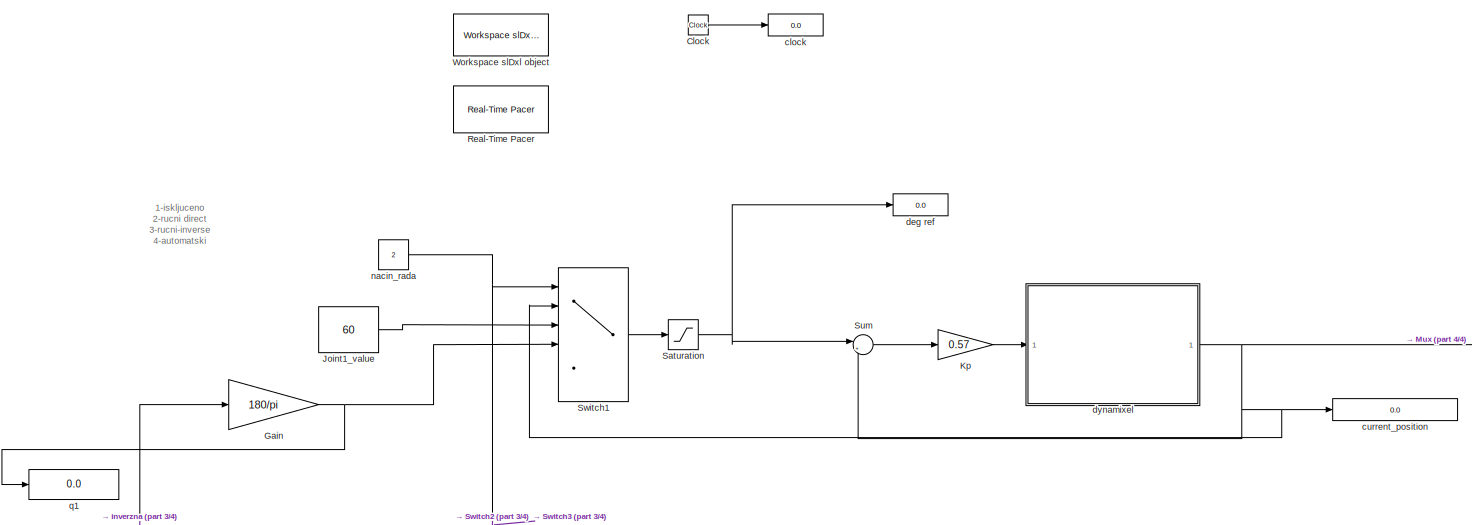
[diagram: root canvas - part 1/4, top center region]
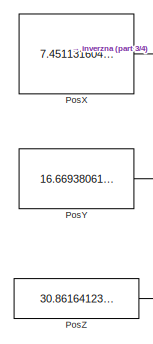
[diagram: root canvas - part 2/4, middle left region]
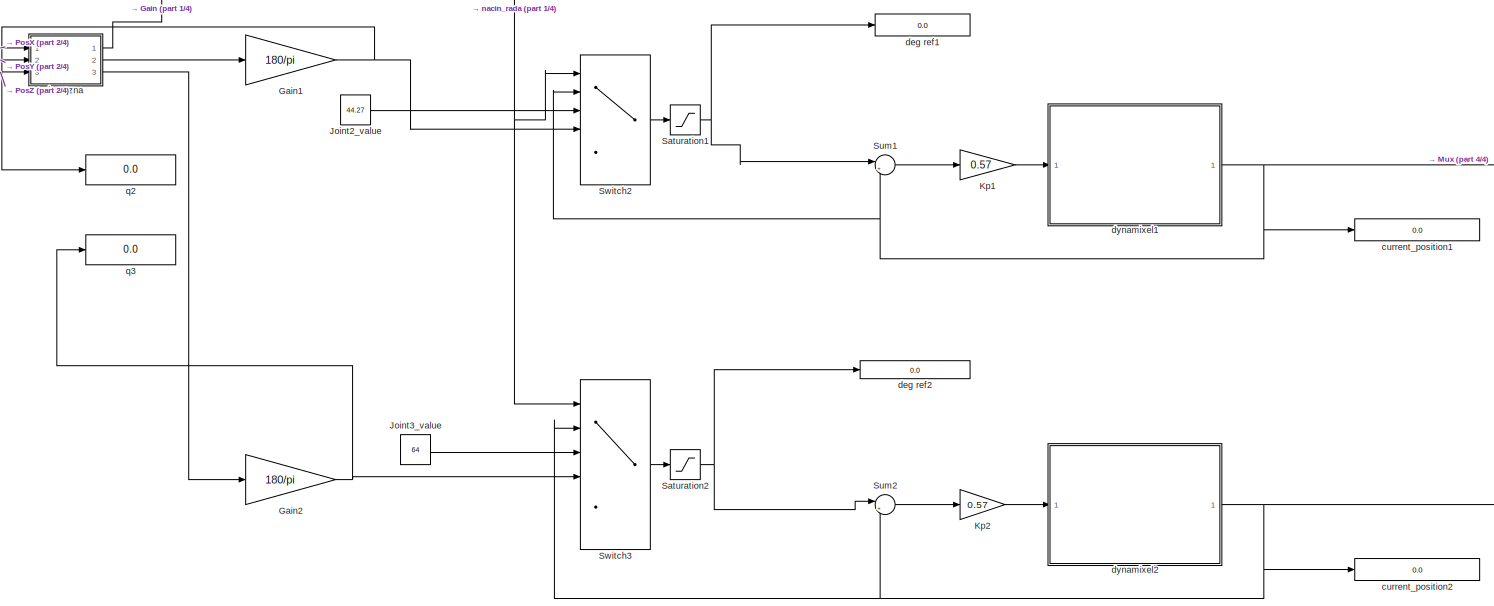
[diagram: root canvas - part 3/4, bottom center region]
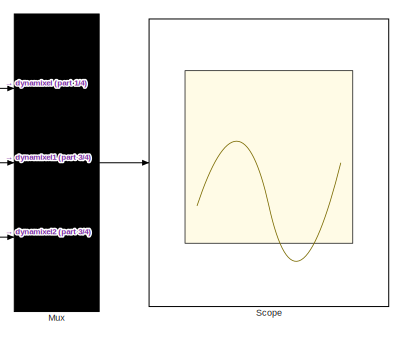
[diagram: root canvas - part 4/4, middle right region]
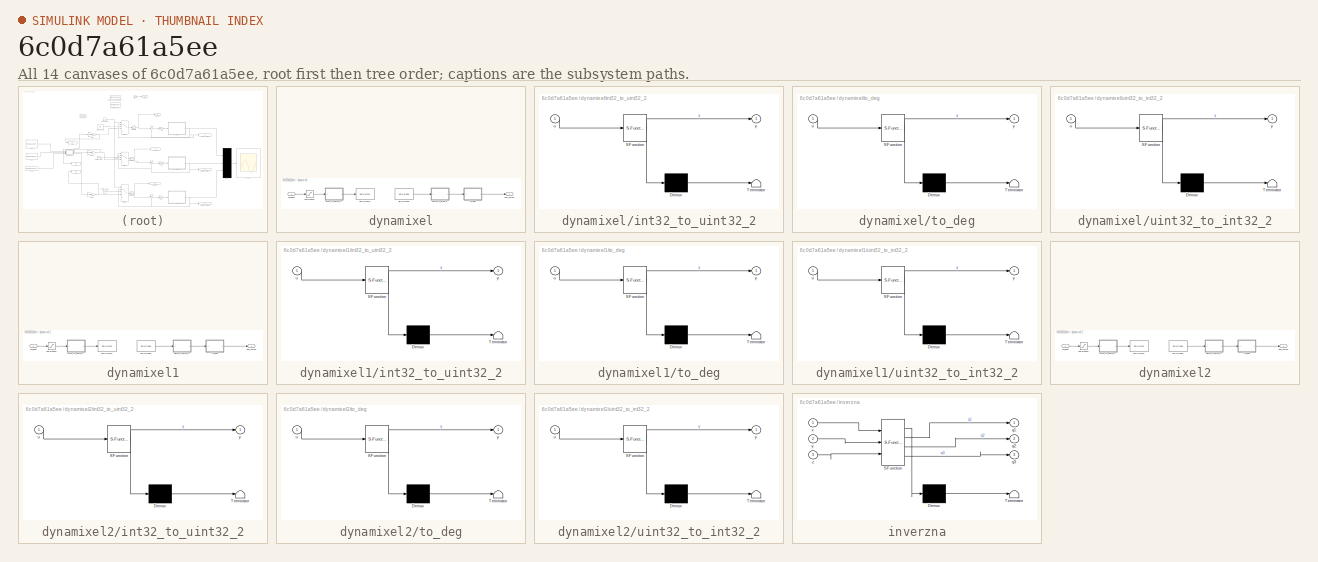
[diagram: thumbnail index - all 14 canvases of the model, root first then tree order]
MODEL slx_6c0d7a61a5ee
KIND model
CONFIG AbsTol = auto
CONFIG EnableMultiTasking = off
CONFIG FixedStep = Ts
CONFIG MaxStep = auto
CONFIG MinStep = auto
CONFIG RelTol = 1e-3
CONFIG SampleTimeConstraint = Unconstrained
CONFIG SolverName = FixedStepAuto
CONFIG StartTime = 0.0
CONFIG StopTime = inf
BLOCK [Clock] Clock
BLOCK [Gain] Gain
  Gain = 180/pi
BLOCK [Gain] Gain1
  Gain = 180/pi
BLOCK [Gain] Gain2
  Gain = 180/pi
BLOCK [Constant] Joint1_value
  Value = 60
BLOCK [Constant] Joint2_value
  Value = 44.27
BLOCK [Constant] Joint3_value
  Value = 64
BLOCK [Gain] Kp
  Gain = 0.57
BLOCK [Gain] Kp1
  Gain = 0.57
BLOCK [Gain] Kp2
  Gain = 0.57
BLOCK [Mux] Mux
  DisplayOption = bar
  Inputs = 3
  Ports = [3, 1]
BLOCK [Constant] PosX
  SampleTime = -1
  Value = 7.45113160479349
  VectorParams1D = off
BLOCK [Constant] PosY
  SampleTime = -1
  Value = 16.6693806165226
  VectorParams1D = off
BLOCK [Constant] PosZ
  SampleTime = -1
  Value = 30.8616412362678
  VectorParams1D = off
BLOCK [Reference] Real-Time Pacer  REF=slDxl_lib_old/Real-Time Pacer
  Commented = on
  Ports = []
  SourceBlock = slDxl_lib_old/Real-Time Pacer
  SourceType = RealTime_Pacer
BLOCK [Saturate] Saturation
  LowerLimit = -180
  UpperLimit = 180
BLOCK [Saturate] Saturation1
  LowerLimit = 0
  UpperLimit = 100
BLOCK [Saturate] Saturation2
  LowerLimit = 0
  UpperLimit = 60
BLOCK [Scope] Scope
  Floating = off
  NumInputPorts = 1
  Ports = [1]
  ScopeSpecificationString = Simulink.scopes.TimeScopeBlockCfg('CurrentConfiguration', extmgr.ConfigurationSet(extmgr.Configuration('Core','General UI',true,'FigureColor',[0.156862745098039 0.156862745098039 0.156862745098039]),extmgr.Configuration('Core','Source UI',true),extmgr.Configuration('Sources','WiredSimulink',true,'DataLoggingSaveFormat','StructureWithTime','DataLoggingDecimation','1','DataLoggingDecimateData',true)...<+2763ch>
BLOCK [Sum] Sum
  Inputs = |+-
  Ports = [2, 1]
BLOCK [Sum] Sum1
  Inputs = |+-
  Ports = [2, 1]
BLOCK [Sum] Sum2
  Inputs = |+-
  Ports = [2, 1]
BLOCK [MultiPortSwitch] Switch1 
  DataPortForDefault = Additional data port
  InputSameDT = off
  Inputs = 4
  Ports = [6, 1]
  SaturateOnIntegerOverflow = off
BLOCK [MultiPortSwitch] Switch2
  DataPortForDefault = Additional data port
  InputSameDT = off
  Inputs = 4
  Ports = [6, 1]
  SaturateOnIntegerOverflow = off
BLOCK [MultiPortSwitch] Switch3
  DataPortForDefault = Additional data port
  InputSameDT = off
  Inputs = 4
  Ports = [6, 1]
  SaturateOnIntegerOverflow = off
BLOCK [Reference] Workspace slDxl object  REF=slDxl_lib_old/Workspace slDxl object
  Ports = []
  SourceBlock = slDxl_lib_old/Workspace slDxl object
  SourceType = slDxl Setup
BLOCK [Display] clock
  Decimation = 1
  Format = long
  Ports = [1]
BLOCK [Display] current_position
  Decimation = 5
  Format = long
  Ports = [1]
BLOCK [Display] current_position1
  Decimation = 5
  Format = long
  Ports = [1]
BLOCK [Display] current_position2
  Decimation = 5
  Format = long
  Ports = [1]
BLOCK [Display] deg ref
  Decimation = 1
  Format = long
  Ports = [1]
BLOCK [Display] deg ref1
  Decimation = 1
  Format = long
  Ports = [1]
BLOCK [Display] deg ref2
  Decimation = 1
  Format = long
  Ports = [1]
BLOCK [SubSystem] dynamixel
  Ports = [1, 1]
  RequestExecContextInheritance = off
BLOCK [Saturate] dynamixel/Saturation2
  LowerLimit = -256
  NameLocation = top
  UpperLimit = 256
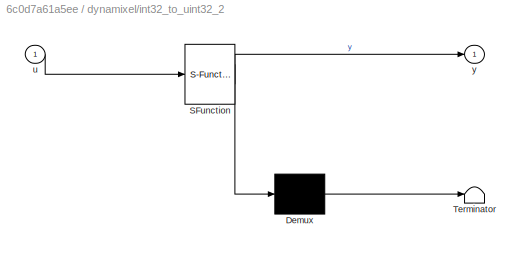
BLOCK [SubSystem] dynamixel/int32_to_uint32_2
  ErrorFcn = Stateflow.Translate.translate
  PermitHierarchicalResolution = ExplicitOnly
  Ports = [1, 1]
  RequestExecContextInheritance = off
  SFBlockType = MATLAB Function
  TreatAsAtomicUnit = on
BLOCK [Demux] dynamixel/int32_to_uint32_2/ Demux 
  Outputs = 1
  Ports = [1, 1]
BLOCK [S-Function] dynamixel/int32_to_uint32_2/ SFunction 
  EnableBusSupport = on
  FunctionName = sf_sfun
  PortCounts = [1 2]
  Ports = [1, 2]
  SFcnIsStateOwnerBlock = off
  SFunctionDeploymentMode = off
  Tag = Stateflow S-Function 4
BLOCK [Terminator] dynamixel/int32_to_uint32_2/ Terminator 
BLOCK [Inport] dynamixel/int32_to_uint32_2/u
BLOCK [Outport] dynamixel/int32_to_uint32_2/y
  VectorParamsAs1DForOutWhenUnconnected = off
BLOCK [Outport] dynamixel/pos_output
  VectorParamsAs1DForOutWhenUnconnected = off
BLOCK [Reference] dynamixel/slDxl Read1  REF=slDxl_lib_old/slDxl Read
  Ports = [0, 1]
  SourceBlock = slDxl_lib_old/slDxl Read
BLOCK [Reference] dynamixel/slDxl Write1  REF=slDxl_lib_old/slDxl Write
  Ports = [1]
  SourceBlock = slDxl_lib_old/slDxl Write
BLOCK [SubSystem] dynamixel/to_deg
  ErrorFcn = Stateflow.Translate.translate
  PermitHierarchicalResolution = ExplicitOnly
  Ports = [1, 1]
  RequestExecContextInheritance = off
  SFBlockType = MATLAB Function
  TreatAsAtomicUnit = on
BLOCK [Demux] dynamixel/to_deg/ Demux 
  Outputs = 1
  Ports = [1, 1]
BLOCK [S-Function] dynamixel/to_deg/ SFunction 
  EnableBusSupport = on
  FunctionName = sf_sfun
  PortCounts = [1 2]
  Ports = [1, 2]
  SFcnIsStateOwnerBlock = off
  SFunctionDeploymentMode = off
  Tag = Stateflow S-Function 3
BLOCK [Terminator] dynamixel/to_deg/ Terminator 
BLOCK [Inport] dynamixel/to_deg/u
BLOCK [Outport] dynamixel/to_deg/y
  VectorParamsAs1DForOutWhenUnconnected = off
BLOCK [SubSystem] dynamixel/uint32_to_int32_2
  ErrorFcn = Stateflow.Translate.translate
  PermitHierarchicalResolution = ExplicitOnly
  Ports = [1, 1]
  RequestExecContextInheritance = off
  SFBlockType = MATLAB Function
  TreatAsAtomicUnit = on
BLOCK [Demux] dynamixel/uint32_to_int32_2/ Demux 
  Outputs = 1
  Ports = [1, 1]
BLOCK [S-Function] dynamixel/uint32_to_int32_2/ SFunction 
  EnableBusSupport = on
  FunctionName = sf_sfun
  PortCounts = [1 2]
  Ports = [1, 2]
  SFcnIsStateOwnerBlock = off
  SFunctionDeploymentMode = off
  Tag = Stateflow S-Function 1
BLOCK [Terminator] dynamixel/uint32_to_int32_2/ Terminator 
BLOCK [Inport] dynamixel/uint32_to_int32_2/u
BLOCK [Outport] dynamixel/uint32_to_int32_2/y
  VectorParamsAs1DForOutWhenUnconnected = off
BLOCK [Inport] dynamixel/vel_input
BLOCK [SubSystem] dynamixel1
  Ports = [1, 1]
  RequestExecContextInheritance = off
BLOCK [Saturate] dynamixel1/Saturation2
  LowerLimit = -256
  NameLocation = top
  UpperLimit = 256
BLOCK [SubSystem] dynamixel1/int32_to_uint32_2
  ErrorFcn = Stateflow.Translate.translate
  PermitHierarchicalResolution = ExplicitOnly
  Ports = [1, 1]
  RequestExecContextInheritance = off
  SFBlockType = MATLAB Function
  TreatAsAtomicUnit = on
BLOCK [Demux] dynamixel1/int32_to_uint32_2/ Demux 
  Outputs = 1
  Ports = [1, 1]
BLOCK [S-Function] dynamixel1/int32_to_uint32_2/ SFunction 
  EnableBusSupport = on
  FunctionName = sf_sfun
  PortCounts = [1 2]
  Ports = [1, 2]
  SFcnIsStateOwnerBlock = off
  SFunctionDeploymentMode = off
  Tag = Stateflow S-Function 2
BLOCK [Terminator] dynamixel1/int32_to_uint32_2/ Terminator 
BLOCK [Inport] dynamixel1/int32_to_uint32_2/u
BLOCK [Outport] dynamixel1/int32_to_uint32_2/y
  VectorParamsAs1DForOutWhenUnconnected = off
BLOCK [Outport] dynamixel1/pos_output
  VectorParamsAs1DForOutWhenUnconnected = off
BLOCK [Reference] dynamixel1/slDxl Read1  REF=slDxl_lib_old/slDxl Read
  Ports = [0, 1]
  SourceBlock = slDxl_lib_old/slDxl Read
BLOCK [Reference] dynamixel1/slDxl Write1  REF=slDxl_lib_old/slDxl Write
  Ports = [1]
  SourceBlock = slDxl_lib_old/slDxl Write
BLOCK [SubSystem] dynamixel1/to_deg
  ErrorFcn = Stateflow.Translate.translate
  PermitHierarchicalResolution = ExplicitOnly
  Ports = [1, 1]
  RequestExecContextInheritance = off
  SFBlockType = MATLAB Function
  TreatAsAtomicUnit = on
BLOCK [Demux] dynamixel1/to_deg/ Demux 
  Outputs = 1
  Ports = [1, 1]
BLOCK [S-Function] dynamixel1/to_deg/ SFunction 
  EnableBusSupport = on
  FunctionName = sf_sfun
  PortCounts = [1 2]
  Ports = [1, 2]
  SFcnIsStateOwnerBlock = off
  SFunctionDeploymentMode = off
  Tag = Stateflow S-Function 5
BLOCK [Terminator] dynamixel1/to_deg/ Terminator 
BLOCK [Inport] dynamixel1/to_deg/u
BLOCK [Outport] dynamixel1/to_deg/y
  VectorParamsAs1DForOutWhenUnconnected = off
BLOCK [SubSystem] dynamixel1/uint32_to_int32_2
  ErrorFcn = Stateflow.Translate.translate
  PermitHierarchicalResolution = ExplicitOnly
  Ports = [1, 1]
  RequestExecContextInheritance = off
  SFBlockType = MATLAB Function
  TreatAsAtomicUnit = on
BLOCK [Demux] dynamixel1/uint32_to_int32_2/ Demux 
  Outputs = 1
  Ports = [1, 1]
BLOCK [S-Function] dynamixel1/uint32_to_int32_2/ SFunction 
  EnableBusSupport = on
  FunctionName = sf_sfun
  PortCounts = [1 2]
  Ports = [1, 2]
  SFcnIsStateOwnerBlock = off
  SFunctionDeploymentMode = off
  Tag = Stateflow S-Function 6
BLOCK [Terminator] dynamixel1/uint32_to_int32_2/ Terminator 
BLOCK [Inport] dynamixel1/uint32_to_int32_2/u
BLOCK [Outport] dynamixel1/uint32_to_int32_2/y
  VectorParamsAs1DForOutWhenUnconnected = off
BLOCK [Inport] dynamixel1/vel_input
BLOCK [SubSystem] dynamixel2
  Ports = [1, 1]
  RequestExecContextInheritance = off
BLOCK [Saturate] dynamixel2/Saturation2
  LowerLimit = -256
  NameLocation = top
  UpperLimit = 256
BLOCK [SubSystem] dynamixel2/int32_to_uint32_2
  ErrorFcn = Stateflow.Translate.translate
  PermitHierarchicalResolution = ExplicitOnly
  Ports = [1, 1]
  RequestExecContextInheritance = off
  SFBlockType = MATLAB Function
  TreatAsAtomicUnit = on
BLOCK [Demux] dynamixel2/int32_to_uint32_2/ Demux 
  Outputs = 1
  Ports = [1, 1]
BLOCK [S-Function] dynamixel2/int32_to_uint32_2/ SFunction 
  EnableBusSupport = on
  FunctionName = sf_sfun
  PortCounts = [1 2]
  Ports = [1, 2]
  SFcnIsStateOwnerBlock = off
  SFunctionDeploymentMode = off
  Tag = Stateflow S-Function 7
BLOCK [Terminator] dynamixel2/int32_to_uint32_2/ Terminator 
BLOCK [Inport] dynamixel2/int32_to_uint32_2/u
BLOCK [Outport] dynamixel2/int32_to_uint32_2/y
  VectorParamsAs1DForOutWhenUnconnected = off
BLOCK [Outport] dynamixel2/pos_output
  VectorParamsAs1DForOutWhenUnconnected = off
BLOCK [Reference] dynamixel2/slDxl Read1  REF=slDxl_lib_old/slDxl Read
  Ports = [0, 1]
  SourceBlock = slDxl_lib_old/slDxl Read
BLOCK [Reference] dynamixel2/slDxl Write1  REF=slDxl_lib_old/slDxl Write
  Ports = [1]
  SourceBlock = slDxl_lib_old/slDxl Write
BLOCK [SubSystem] dynamixel2/to_deg
  ErrorFcn = Stateflow.Translate.translate
  PermitHierarchicalResolution = ExplicitOnly
  Ports = [1, 1]
  RequestExecContextInheritance = off
  SFBlockType = MATLAB Function
  TreatAsAtomicUnit = on
BLOCK [Demux] dynamixel2/to_deg/ Demux 
  Outputs = 1
  Ports = [1, 1]
BLOCK [S-Function] dynamixel2/to_deg/ SFunction 
  EnableBusSupport = on
  FunctionName = sf_sfun
  PortCounts = [1 2]
  Ports = [1, 2]
  SFcnIsStateOwnerBlock = off
  SFunctionDeploymentMode = off
  Tag = Stateflow S-Function 8
BLOCK [Terminator] dynamixel2/to_deg/ Terminator 
BLOCK [Inport] dynamixel2/to_deg/u
BLOCK [Outport] dynamixel2/to_deg/y
  VectorParamsAs1DForOutWhenUnconnected = off
BLOCK [SubSystem] dynamixel2/uint32_to_int32_2
  ErrorFcn = Stateflow.Translate.translate
  PermitHierarchicalResolution = ExplicitOnly
  Ports = [1, 1]
  RequestExecContextInheritance = off
  SFBlockType = MATLAB Function
  TreatAsAtomicUnit = on
BLOCK [Demux] dynamixel2/uint32_to_int32_2/ Demux 
  Outputs = 1
  Ports = [1, 1]
BLOCK [S-Function] dynamixel2/uint32_to_int32_2/ SFunction 
  EnableBusSupport = on
  FunctionName = sf_sfun
  PortCounts = [1 2]
  Ports = [1, 2]
  SFcnIsStateOwnerBlock = off
  SFunctionDeploymentMode = off
  Tag = Stateflow S-Function 9
BLOCK [Terminator] dynamixel2/uint32_to_int32_2/ Terminator 
BLOCK [Inport] dynamixel2/uint32_to_int32_2/u
BLOCK [Outport] dynamixel2/uint32_to_int32_2/y
  VectorParamsAs1DForOutWhenUnconnected = off
BLOCK [Inport] dynamixel2/vel_input
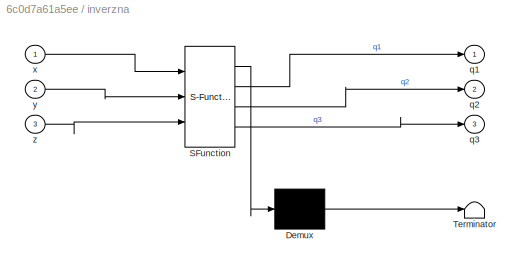
BLOCK [SubSystem] inverzna
  ErrorFcn = Stateflow.Translate.translate
  PermitHierarchicalResolution = ExplicitOnly
  Ports = [3, 3]
  RequestExecContextInheritance = off
  SFBlockType = MATLAB Function
  TreatAsAtomicUnit = on
BLOCK [Demux] inverzna/ Demux 
  Outputs = 1
  Ports = [1, 1]
BLOCK [S-Function] inverzna/ SFunction 
  EnableBusSupport = on
  FunctionName = sf_sfun
  PortCounts = [3 4]
  Ports = [3, 4]
  SFcnIsStateOwnerBlock = off
  SFunctionDeploymentMode = off
  Tag = Stateflow S-Function 11
BLOCK [Terminator] inverzna/ Terminator 
BLOCK [Outport] inverzna/q1
BLOCK [Outport] inverzna/q2
  Port = 2
BLOCK [Outport] inverzna/q3
  Port = 3
BLOCK [Inport] inverzna/x
BLOCK [Inport] inverzna/y
  Port = 2
BLOCK [Inport] inverzna/z
  Port = 3
BLOCK [Constant] nacin_rada
  Value = 2
BLOCK [Display] q1
  Decimation = 1
  Ports = [1]
BLOCK [Display] q2
  Decimation = 1
  Ports = [1]
BLOCK [Display] q3
  Decimation = 1
  Ports = [1]
ANNOTATION (root): 1-iskljuceno 2-rucni direct 3-rucni-inverse 4-automatski
LINE Clock:1 -> clock:1
NET Gain1:1 -> Switch2:4, q2:1
NET Gain2:1 -> Switch3:4, q3:1
NET Gain:1 -> Switch1 :4, q1:1
LINE Joint1_value:1 -> Switch1 :3
LINE Joint2_value:1 -> Switch2:3
LINE Joint3_value:1 -> Switch3:3
LINE Kp1:1 -> dynamixel1:1
LINE Kp2:1 -> dynamixel2:1
LINE Kp:1 -> dynamixel:1
LINE Mux:1 -> Scope:1
LINE PosX:1 -> inverzna:1
LINE PosY:1 -> inverzna:2
LINE PosZ:1 -> inverzna:3
NET Saturation1:1 -> Sum1:1, deg ref1:1
NET Saturation2:1 -> Sum2:1, deg ref2:1
NET Saturation:1 -> Sum:1, deg ref:1
LINE Sum1:1 -> Kp1:1
LINE Sum2:1 -> Kp2:1
LINE Sum:1 -> Kp:1
LINE Switch1 :1 -> Saturation:1
LINE Switch2:1 -> Saturation1:1
LINE Switch3:1 -> Saturation2:1
LINE dynamixel/Saturation2:1 -> dynamixel/int32_to_uint32_2:1
LINE dynamixel/int32_to_uint32_2:1 -> dynamixel/slDxl Write1:1
LINE dynamixel/slDxl Read1:1 -> dynamixel/uint32_to_int32_2:1
LINE dynamixel/to_deg:1 -> dynamixel/pos_output:1
LINE dynamixel/uint32_to_int32_2:1 -> dynamixel/to_deg:1
LINE dynamixel/vel_input:1 -> dynamixel/Saturation2:1
LINE dynamixel1/Saturation2:1 -> dynamixel1/int32_to_uint32_2:1
LINE dynamixel1/int32_to_uint32_2:1 -> dynamixel1/slDxl Write1:1
LINE dynamixel1/slDxl Read1:1 -> dynamixel1/uint32_to_int32_2:1
LINE dynamixel1/to_deg:1 -> dynamixel1/pos_output:1
LINE dynamixel1/uint32_to_int32_2:1 -> dynamixel1/to_deg:1
LINE dynamixel1/vel_input:1 -> dynamixel1/Saturation2:1
NET dynamixel1:1 -> Mux:2, Sum1:2, Switch2:2, current_position1:1
LINE dynamixel2/Saturation2:1 -> dynamixel2/int32_to_uint32_2:1
LINE dynamixel2/int32_to_uint32_2:1 -> dynamixel2/slDxl Write1:1
LINE dynamixel2/slDxl Read1:1 -> dynamixel2/uint32_to_int32_2:1
LINE dynamixel2/to_deg:1 -> dynamixel2/pos_output:1
LINE dynamixel2/uint32_to_int32_2:1 -> dynamixel2/to_deg:1
LINE dynamixel2/vel_input:1 -> dynamixel2/Saturation2:1
NET dynamixel2:1 -> Mux:3, Sum2:2, Switch3:2, current_position2:1
NET dynamixel:1 -> Mux:1, Sum:2, Switch1 :2, current_position:1
LINE inverzna:1 -> Gain:1
LINE inverzna:2 -> Gain1:1
LINE inverzna:3 -> Gain2:1
NET nacin_rada:1 -> Switch1 :1, Switch2:1, Switch3:1
note: NET lines group one-source signal fan-out (src -> all destinations, sorted); 1:1 wires keep LINE
CHART dynamixel/uint32_to_int32_2 states=1 transitions=1
  STATE_LABEL 'eML_blk_kernel()'
  STATE_LABEL "SCRIPT:\nfunction y = fcn(u)\n    temp = typecast(uint32(u), 'int32');\n    y = double(temp(1));\nend"
CHART dynamixel1/int32_to_uint32_2 states=1 transitions=1
  STATE_LABEL 'eML_blk_kernel()'
  STATE_LABEL "SCRIPT:\nfunction y = fcn(u)\n    temp = typecast(int32(u), 'uint32');\n    y = temp(1);\nend"
CHART dynamixel/to_deg states=1 transitions=1
  STATE_LABEL 'eML_blk_kernel()'
  STATE_LABEL 'SCRIPT:\nfunction y = fcn(u)\n    y = (u / 4095.0) * 360.0;\nend'
CHART dynamixel/int32_to_uint32_2 states=1 transitions=1
  STATE_LABEL 'eML_blk_kernel()'
  STATE_LABEL "SCRIPT:\nfunction y = fcn(u)\n    temp = typecast(int32(u), 'uint32');\n    y = temp(1);\nend"
CHART dynamixel1/to_deg states=1 transitions=1
  STATE_LABEL 'eML_blk_kernel()'
  STATE_LABEL 'SCRIPT:\nfunction y = fcn(u)\n    y = (u / 4095.0) * 360.0;\nend'
CHART dynamixel1/uint32_to_int32_2 states=1 transitions=1
  STATE_LABEL 'eML_blk_kernel()'
  STATE_LABEL "SCRIPT:\nfunction y = fcn(u)\n    temp = typecast(uint32(u), 'int32');\n    y = double(temp(1));\nend"
CHART dynamixel2/int32_to_uint32_2 states=1 transitions=1
  STATE_LABEL 'eML_blk_kernel()'
  STATE_LABEL "SCRIPT:\nfunction y = fcn(u)\n    temp = typecast(int32(u), 'uint32');\n    y = temp(1);\nend"
CHART dynamixel2/to_deg states=1 transitions=1
  STATE_LABEL 'eML_blk_kernel()'
  STATE_LABEL 'SCRIPT:\nfunction y = fcn(u)\n    y = (u / 4095.0) * 360.0;\nend'
CHART dynamixel2/uint32_to_int32_2 states=1 transitions=1
  STATE_LABEL 'eML_blk_kernel()'
  STATE_LABEL "SCRIPT:\nfunction y = fcn(u)\n    temp = typecast(uint32(u), 'int32');\n    y = double(temp(1));\nend"
CHART inverzna states=1 transitions=1
  STATE_LABEL 'eML_blk_kernel()'
  STATE_LABEL 'SCRIPT:\nfunction [q1,q2,q3] = fcn(x,y,z)\na1 = 8.2-1.5;\na2 = 16;        %%cm\na3 = 20;\n\nq1 = atan2(y,x);\nq3 = acos((x^2+y^2+(z-a1)^2-a2^2-a3^2)/(2*a2*a3));\nq2 = pi/2 -atan2(z-a1, sqrt(x^2+y^2)) - atan2(sin(q3)*a3, a2+cos(q3)*a3);'
CHART  states=0 transitions=0
CHART  states=0 transitions=0
CHART  states=0 transitions=0
CHART  states=0 transitions=0
CHART  states=0 transitions=0
CHART  states=0 transitions=0
CHART  states=0 transitions=0
CHART  states=0 transitions=0
CHART  states=0 transitions=0
CHART  states=0 transitions=0
